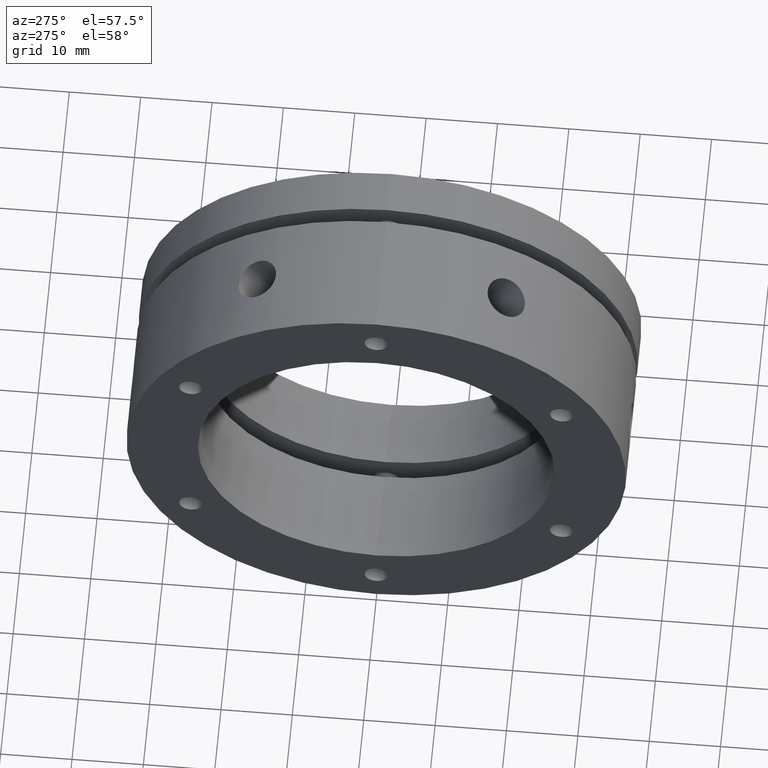
[diagram: clean part render]
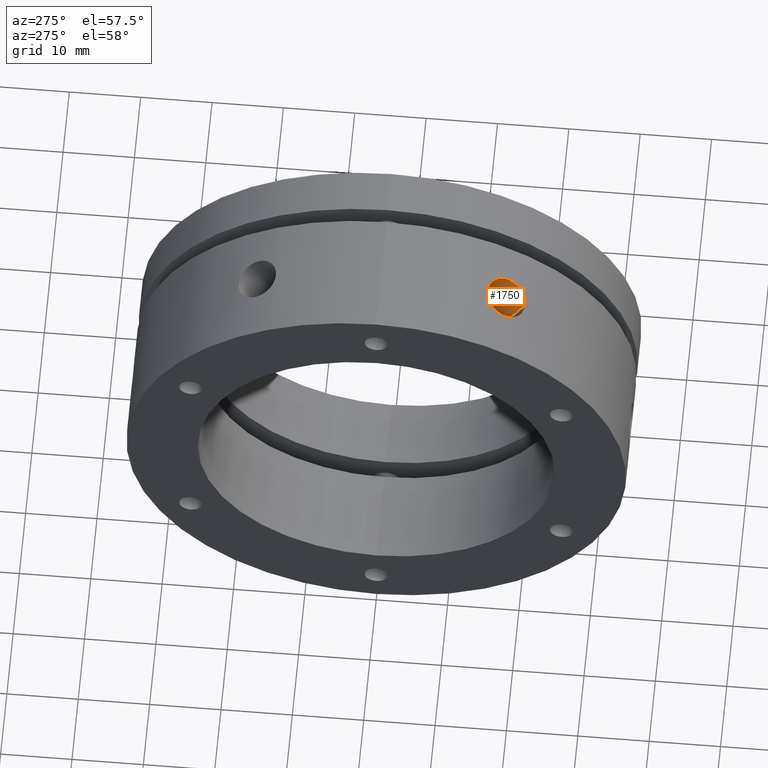
[diagram: same view with one face highlighted and labeled with its STEP entity id]
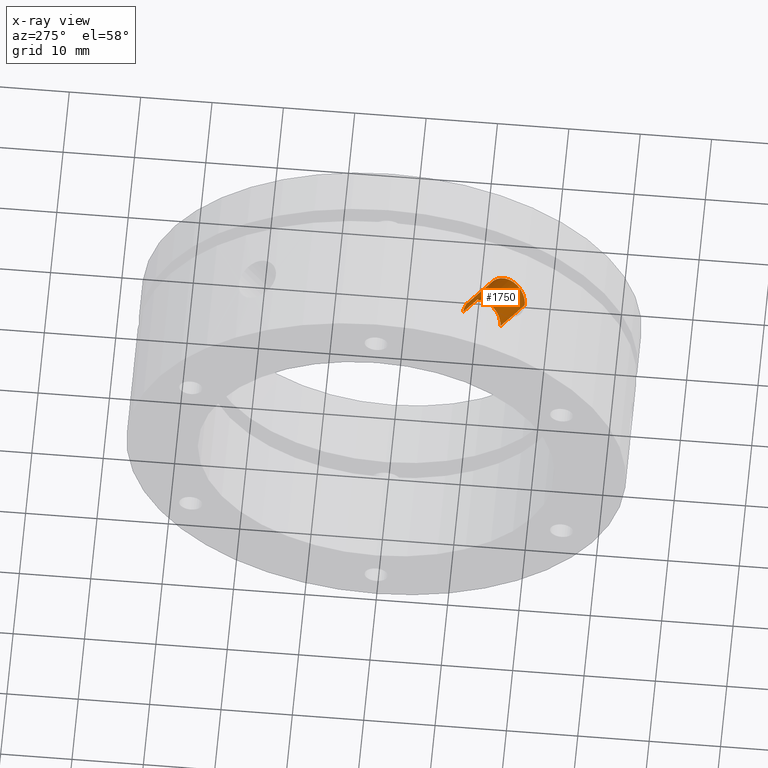
[diagram: x-ray of the same camera — body ghosted, the highlighted face saturated]
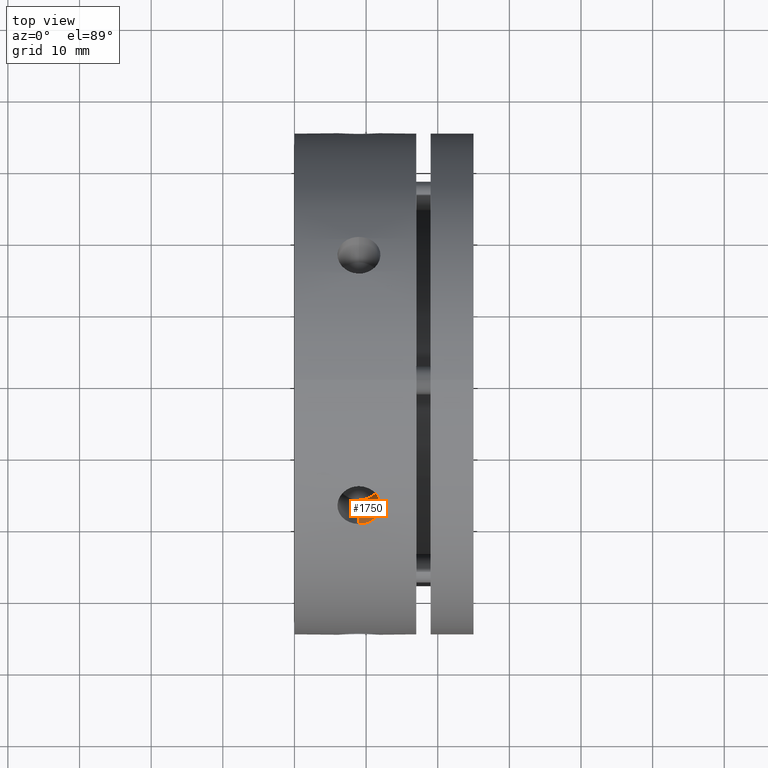
[diagram: same view with one face highlighted and labeled with its STEP entity id]
A machine part, auxiliary view. The second image highlights one B-rep face of the part: STEP entity #1750.
The next image is the same camera in x-ray: the body ghosted, the highlighted face saturated — about 0% of this face is hidden behind the body in this view.
A second angle (top view) of the same face is appended — the face is thin or edge-on in the first view.
In plain terms, the highlighted cylindrical surface (edge-blend (fillet) strip) has radius 3 mm, axis along (0, -0.5, 0.866).
Its self-contained STEP definition (entity closure, byte-faithful):
#106 = AXIS2_PLACEMENT_3D ( 'NONE', #3327, #3325, #3323 ) ;
#238 = B_SPLINE_CURVE_WITH_KNOTS ( 'NONE', 3,
 ( #3876, #3875, #3911, #3912, #3913, #3914, #3915, #3916, #3917, #3918, #3919, #3920, #3921, #3922, #3923, #3924, #3925, #3926, #3927, #3928, #3929, #3930, #3931, #3932, #3933, #3934, #3935, #3936, #3937, #3938, #3939, #3940, #3941, #3942 ),
 .UNSPECIFIED., .F., .F.,
 ( 4, 2, 2, 2, 2, 2, 2, 2, 2, 2, 2, 2, 2, 2, 2, 2, 4 ),
 ( 0.004692915541314159900, 0.005279268137838641700, 0.005865620734363122600, 0.006451973330887604400, 0.007038325927412086200, 0.007624678523936561000, 0.008211031120461035800, 0.008797383716985511500, 0.009383736313509985500, 0.009970088910034461200, 0.01055644150655893700, 0.01114279410308341100, 0.01172914669960788800, 0.01231549929613236200, 0.01290185189265684000, 0.01348820448918131400, 0.01407455708570578800 ),
 .UNSPECIFIED. ) ;
#432 = EDGE_LOOP ( 'NONE', ( #1297, #1298, #1299, #1300 ) ) ;
#678 = VERTEX_POINT ( 'NONE', #1608 ) ;
#679 = VERTEX_POINT ( 'NONE', #1619 ) ;
#681 = VERTEX_POINT ( 'NONE', #1620 ) ;
#687 = VERTEX_POINT ( 'NONE', #1625 ) ;
#1297 = ORIENTED_EDGE ( 'NONE', *, *, #1687, .F. ) ;
#1298 = ORIENTED_EDGE ( 'NONE', *, *, #4673, .F. ) ;
#1299 = ORIENTED_EDGE ( 'NONE', *, *, #1689, .T. ) ;
#1300 = ORIENTED_EDGE ( 'NONE', *, *, #4684, .F. ) ;
#1608 = CARTESIAN_POINT ( 'NONE',  ( 8.999999999999989300, -14.83751956280938200, 31.69933774108299600 ) ) ;
#1619 = CARTESIAN_POINT ( 'NONE',  ( 8.999999999999989300, -11.40192379214960800, 25.74871130394186400 ) ) ;
#1620 = CARTESIAN_POINT ( 'NONE',  ( 8.999999999999989300, -16.59807620785038700, 22.74871130798669600 ) ) ;
#1625 = CARTESIAN_POINT ( 'NONE',  ( 8.999999999999989300, -20.03367198551601500, 28.69933774108300300 ) ) ;
#1687 = EDGE_CURVE ( 'NONE', #679, #678, #2516, .T. ) ;
#1689 = EDGE_CURVE ( 'NONE', #681, #687, #2513, .T. ) ;
#1750 = ADVANCED_FACE ( 'NONE', ( #2615 ), #2624, .F. ) ;
#2513 = LINE ( 'NONE', #3087, #2519 ) ;
#2516 = LINE ( 'NONE', #3084, #2517 ) ;
#2517 = VECTOR ( 'NONE', #3086, 1000.000000000000100 ) ;
#2519 = VECTOR ( 'NONE', #3120, 1000.000000000000100 ) ;
#2615 = FACE_OUTER_BOUND ( 'NONE', #432, .T. ) ;
#2624 = CYLINDRICAL_SURFACE ( 'NONE', #106, 3.000000000000002700 ) ;
#2960 = CIRCLE ( 'NONE', #4071, 3.000000000000000900 ) ;
#3084 = CARTESIAN_POINT ( 'NONE',  ( 8.999999999999989300, -13.15192378864668800, 28.77980021920981800 ) ) ;
#3086 = DIRECTION ( 'NONE',  ( 0.0000000000000000000, -0.4999999999999998300, 0.8660254037844387100 ) ) ;
#3087 = CARTESIAN_POINT ( 'NONE',  ( 8.999999999999989300, -18.34807621135332300, 25.77980021920981500 ) ) ;
#3120 = DIRECTION ( 'NONE',  ( 0.0000000000000000000, -0.4999999999999998300, 0.8660254037844387100 ) ) ;
#3323 = DIRECTION ( 'NONE',  ( 0.0000000000000000000, -0.8660254037844386000, -0.5000000000000000000 ) ) ;
#3325 = DIRECTION ( 'NONE',  ( 0.0000000000000000000, -0.4999999999999998900, 0.8660254037844388200 ) ) ;
#3327 = CARTESIAN_POINT ( 'NONE',  ( 8.999999999999989300, -15.75000000000000400, 27.27980021920981800 ) ) ;
#3812 = CARTESIAN_POINT ( 'NONE',  ( 8.999999999999989300, -14.00000000000000200, 24.24871130596427800 ) ) ;
#3813 = DIRECTION ( 'NONE',  ( 0.0000000000000000000, -0.4999999999999998900, 0.8660254037844388200 ) ) ;
#3814 = DIRECTION ( 'NONE',  ( 0.0000000000000000000, -0.8660254037844391500, -0.4999999999999991100 ) ) ;
#3875 = CARTESIAN_POINT ( 'NONE',  ( 9.195732015671108400, -14.83751956280938200, 31.69933774108300300 ) ) ;
#3876 = CARTESIAN_POINT ( 'NONE',  ( 8.999999999999989300, -14.83751956280938200, 31.69933774108299600 ) ) ;
#3911 = CARTESIAN_POINT ( 'NONE',  ( 9.394546833103886400, -14.85534076658800700, 31.69101345550927500 ) ) ;
#3912 = CARTESIAN_POINT ( 'NONE',  ( 9.779275308881537400, -14.92504560357619400, 31.65824532187297500 ) ) ;
#3913 = CARTESIAN_POINT ( 'NONE',  ( 9.966278225108880000, -14.97654819509672200, 31.63398010170768900 ) ) ;
#3914 = CARTESIAN_POINT ( 'NONE',  ( 10.32950460084002300, -15.11279855623184400, 31.56911485477618100 ) ) ;
#3915 = CARTESIAN_POINT ( 'NONE',  ( 10.50500200498231800, -15.19778335879563100, 31.52838778022572800 ) ) ;
#3916 = CARTESIAN_POINT ( 'NONE',  ( 10.82987218126536200, -15.39364947350862200, 31.43322145323193000 ) ) ;
#3917 = CARTESIAN_POINT ( 'NONE',  ( 10.98132190000470000, -15.50521412699460600, 31.37846421239291700 ) ) ;
#3918 = CARTESIAN_POINT ( 'NONE',  ( 11.26137929799903100, -15.75626063981526500, 31.25315875399772000 ) ) ;
#3919 = CARTESIAN_POINT ( 'NONE',  ( 11.38543978646265500, -15.89168314973509600, 31.18462512582535600 ) ) ;
#3920 = CARTESIAN_POINT ( 'NONE',  ( 11.60259083707075300, -16.18073416789673400, 31.03562919223150000 ) ) ;
#3921 = CARTESIAN_POINT ( 'NONE',  ( 11.69649552267926000, -16.33622125028987100, 30.95417452671209100 ) ) ;
#3922 = CARTESIAN_POINT ( 'NONE',  ( 11.84697360372798500, -16.65687232383729500, 30.78281419487110400 ) ) ;
#3923 = CARTESIAN_POINT ( 'NONE',  ( 11.90368450678716900, -16.82117601172420500, 30.69340342201507700 ) ) ;
#3924 = CARTESIAN_POINT ( 'NONE',  ( 11.98038956337898000, -17.15741223671023300, 30.50672354389371000 ) ) ;
#3925 = CARTESIAN_POINT ( 'NONE',  ( 12.00014013481825600, -17.33016499350654600, 30.40895728891870000 ) ) ;
#3926 = CARTESIAN_POINT ( 'NONE',  ( 11.99985834994432000, -17.67352779071065800, 30.21068879606057000 ) ) ;
#3927 = CARTESIAN_POINT ( 'NONE',  ( 11.98026208894686000, -17.84148403604511700, 30.11176209388489500 ) ) ;
#3928 = CARTESIAN_POINT ( 'NONE',  ( 11.90375156198870200, -18.17034623982217000, 29.91446617494879200 ) ) ;
#3929 = CARTESIAN_POINT ( 'NONE',  ( 11.84589947132389300, -18.33294459178251400, 29.81503208238626000 ) ) ;
#3930 = CARTESIAN_POINT ( 'NONE',  ( 11.69507328754617100, -18.64142288596554000, 29.62313873082477800 ) ) ;
#3931 = CARTESIAN_POINT ( 'NONE',  ( 11.60282102763005700, -18.78701243165720300, 29.53091218051241600 ) ) ;
#3932 = CARTESIAN_POINT ( 'NONE',  ( 11.38492091247538300, -19.06146341807333800, 29.35450940966021300 ) ) ;
#3933 = CARTESIAN_POINT ( 'NONE',  ( 11.25818491396265500, -19.19074058244055400, 29.27002979303981400 ) ) ;
#3934 = CARTESIAN_POINT ( 'NONE',  ( 10.98139766767339900, -19.42170284835878400, 29.11729085368385800 ) ) ;
#3935 = CARTESIAN_POINT ( 'NONE',  ( 10.83036481389940100, -19.52495659384606000, 29.04803149412195000 ) ) ;
#3936 = CARTESIAN_POINT ( 'NONE',  ( 10.50234034982904400, -19.70688359369920300, 28.92491664118432500 ) ) ;
#3937 = CARTESIAN_POINT ( 'NONE',  ( 10.32785005692186800, -19.78385644172924200, 28.87221226783709200 ) ) ;
#3938 = CARTESIAN_POINT ( 'NONE',  ( 9.966857492859823300, -19.90732388260402200, 28.78722065047437400 ) ) ;
#3939 = CARTESIAN_POINT ( 'NONE',  ( 9.777683565778787100, -19.95474362268784300, 28.75429871318224400 ) ) ;
#3940 = CARTESIAN_POINT ( 'NONE',  ( 9.390425350201681500, -20.01806719771586200, 28.71025031590366800 ) ) ;
#3941 = CARTESIAN_POINT ( 'NONE',  ( 9.195731719832549400, -20.03367198551601500, 28.69933774108299200 ) ) ;
#3942 = CARTESIAN_POINT ( 'NONE',  ( 8.999999999999989300, -20.03367198551601500, 28.69933774108300300 ) ) ;
#4071 = AXIS2_PLACEMENT_3D ( 'NONE', #3812, #3813, #3814 ) ;
#4673 = EDGE_CURVE ( 'NONE', #681, #679, #2960, .T. ) ;
#4684 = EDGE_CURVE ( 'NONE', #678, #687, #238, .T. ) ;